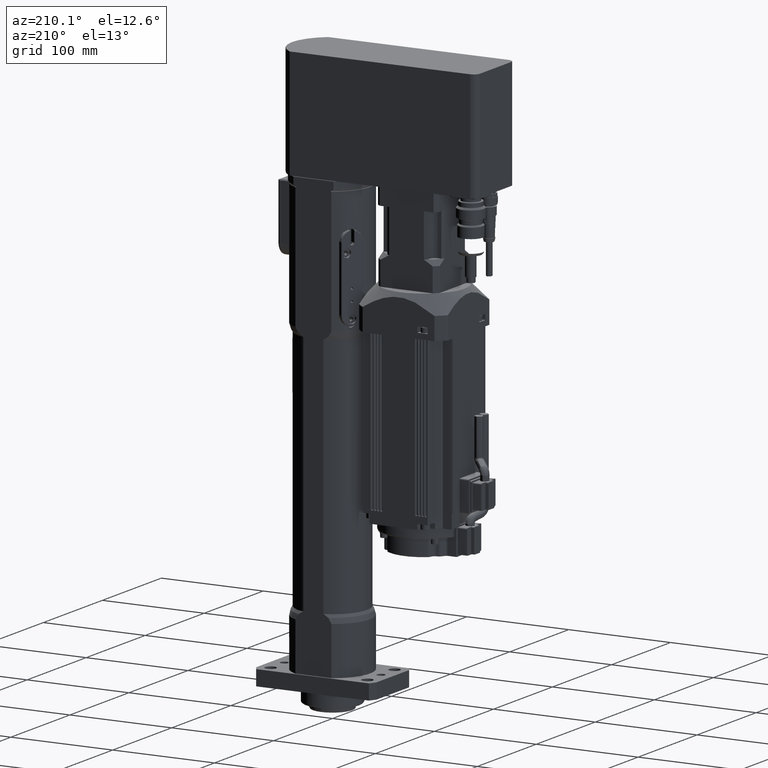
[diagram: clean part render]
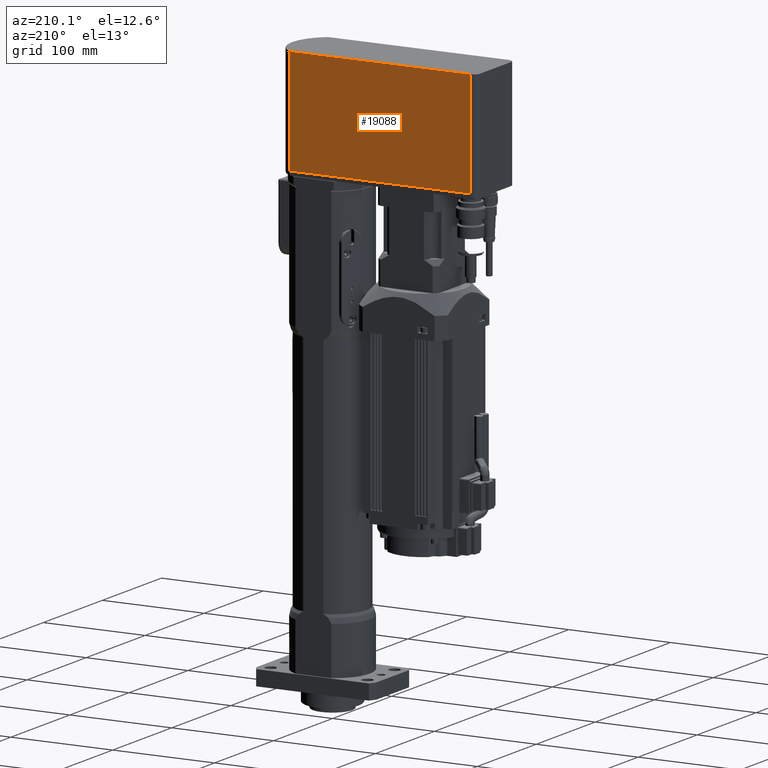
[diagram: same view with one face highlighted and labeled with its STEP entity id]
A machine part, auxiliary view. The second image highlights one B-rep face of the part: STEP entity #19088.
In plain terms, the highlighted planar face has unit normal (-0, 1, 0).
Its self-contained STEP definition (entity closure, byte-faithful):
#749=PLANE('',#20618);
#1933=LINE('',#30101,#3550);
#1934=LINE('',#30105,#3551);
#1935=LINE('',#30109,#3552);
#1936=LINE('',#30110,#3553);
#3550=VECTOR('',#24509,10.);
#3551=VECTOR('',#24514,10.);
#3552=VECTOR('',#24519,10.);
#3553=VECTOR('',#24520,10.);
#5099=FACE_OUTER_BOUND('',#6231,.T.);
#6231=EDGE_LOOP('',(#14892,#14893,#14894,#14895));
#8646=VERTEX_POINT('',#30098);
#8647=VERTEX_POINT('',#30100);
#8648=VERTEX_POINT('',#30104);
#8649=VERTEX_POINT('',#30108);
#10859=EDGE_CURVE('',#8646,#8647,#1933,.T.);
#10861=EDGE_CURVE('',#8647,#8648,#1934,.T.);
#10863=EDGE_CURVE('',#8649,#8646,#1935,.T.);
#10864=EDGE_CURVE('',#8648,#8649,#1936,.T.);
#14892=ORIENTED_EDGE('',*,*,#10861,.F.);
#14893=ORIENTED_EDGE('',*,*,#10859,.F.);
#14894=ORIENTED_EDGE('',*,*,#10863,.F.);
#14895=ORIENTED_EDGE('',*,*,#10864,.F.);
#19088=ADVANCED_FACE('',(#5099),#749,.T.);
#20618=AXIS2_PLACEMENT_3D('',#30107,#24517,#24518);
#24509=DIRECTION('',(-1.,-1.21125073767751E-16,1.91946911817441E-236));
#24514=DIRECTION('',(-1.91946911817441E-236,3.71993341654073E-252,-1.));
#24517=DIRECTION('center_axis',(-1.21125073767751E-16,1.,6.04489180187869E-252));
#24518=DIRECTION('ref_axis',(-1.,-1.21125073767751E-16,1.91946911817441E-236));
#24519=DIRECTION('',(1.91946911817441E-236,-3.71993341654073E-252,1.));
#24520=DIRECTION('',(1.,-1.66533453693774E-16,4.25401435010039E-63));
#30098=CARTESIAN_POINT('',(23.318447632722,32.5,556.));
#30100=CARTESIAN_POINT('',(-154.,32.5,556.));
#30101=CARTESIAN_POINT('',(23.318447632722,32.5,556.));
#30104=CARTESIAN_POINT('',(-154.,32.5,452.));
#30105=CARTESIAN_POINT('',(-154.,32.5,452.));
#30107=CARTESIAN_POINT('Origin',(23.318447632722,32.5,452.));
#30108=CARTESIAN_POINT('',(23.318447632722,32.5,452.));
#30109=CARTESIAN_POINT('',(23.318447632722,32.5,452.));
#30110=CARTESIAN_POINT('',(-34.292047641536,32.5,452.));